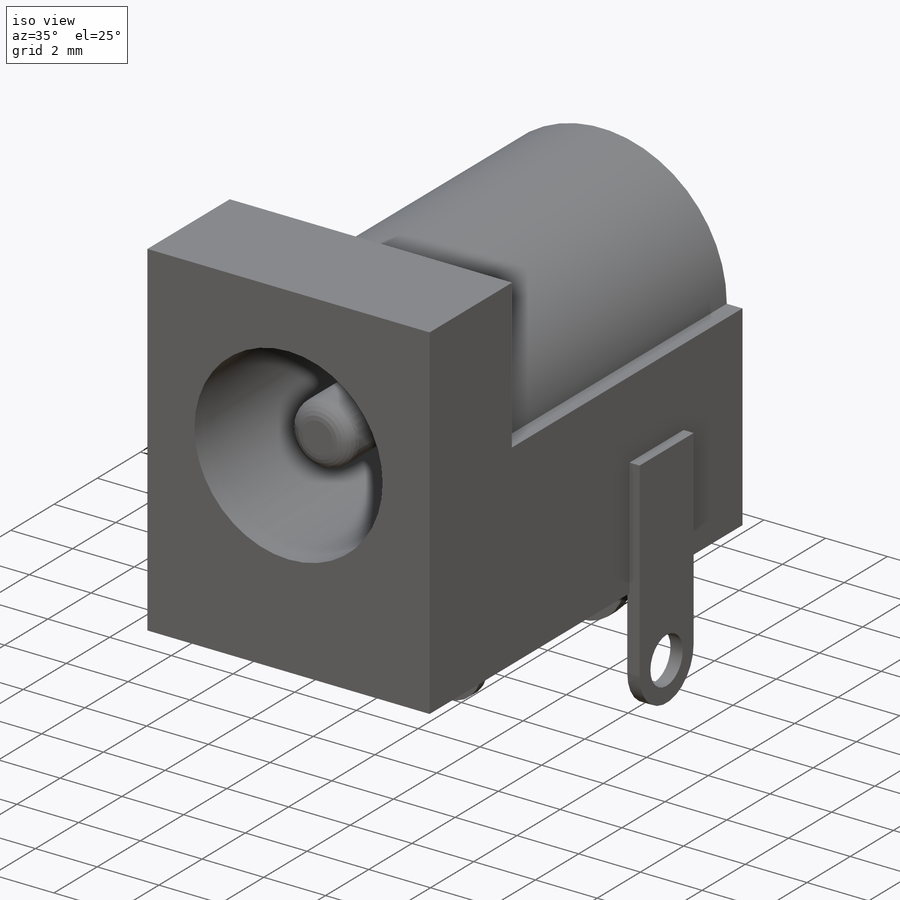
[diagram: iso view]
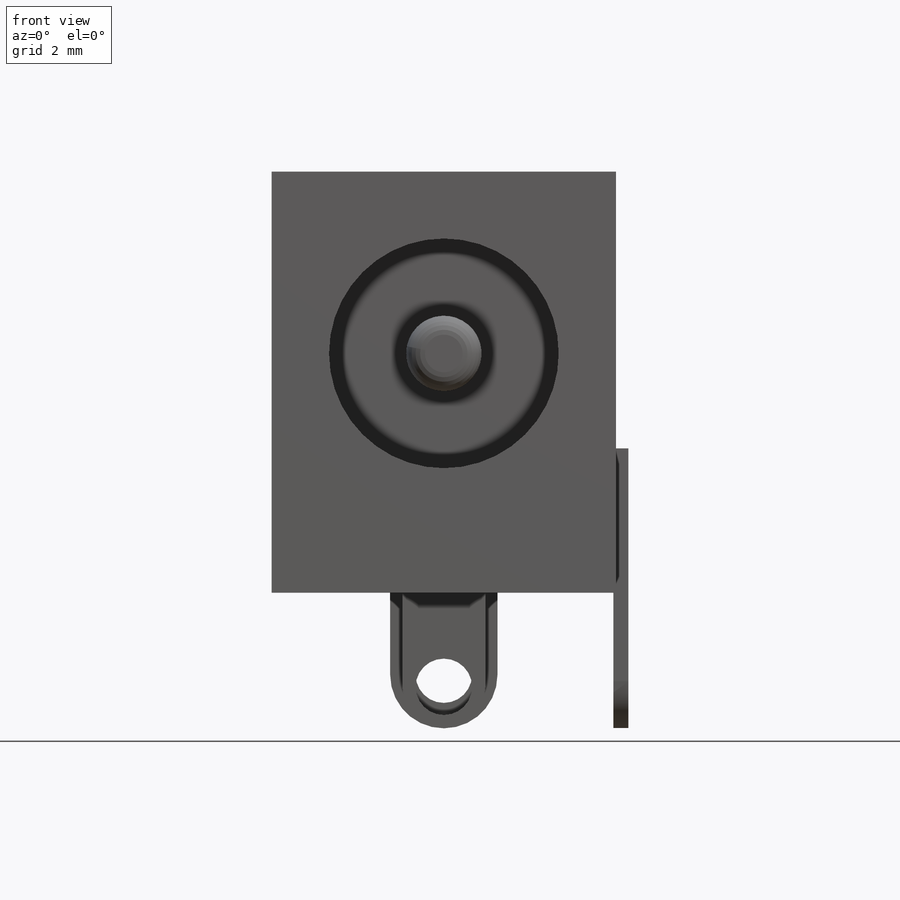
[diagram: front view]
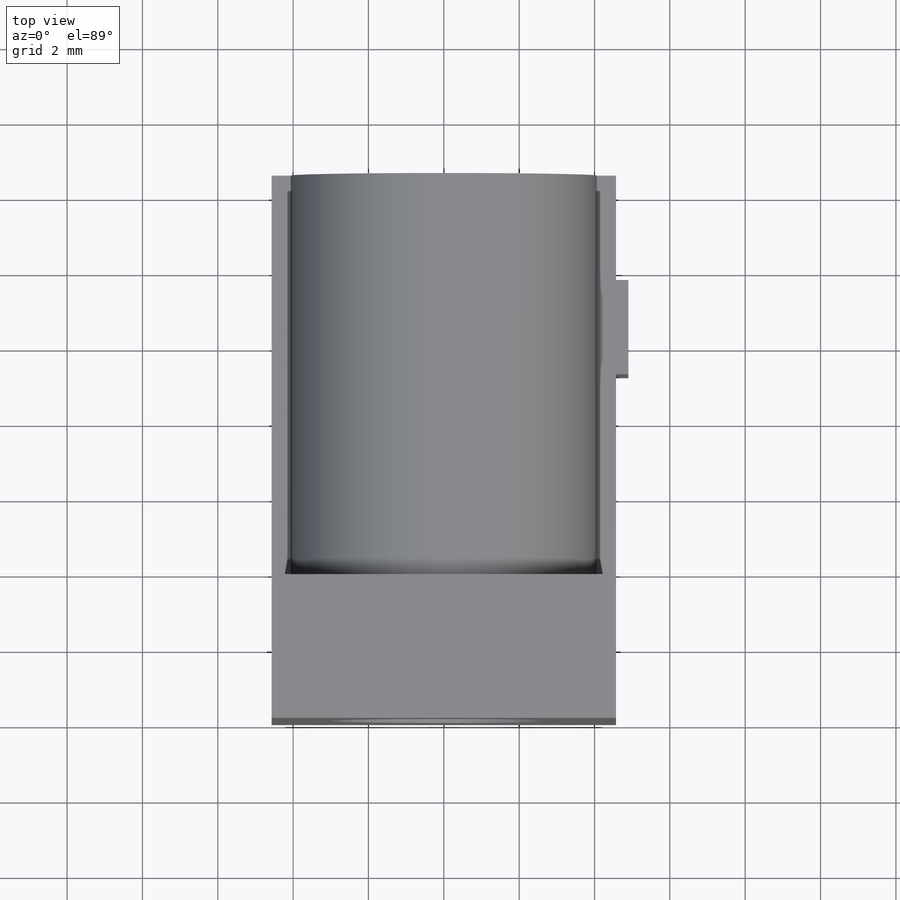
[diagram: top view]
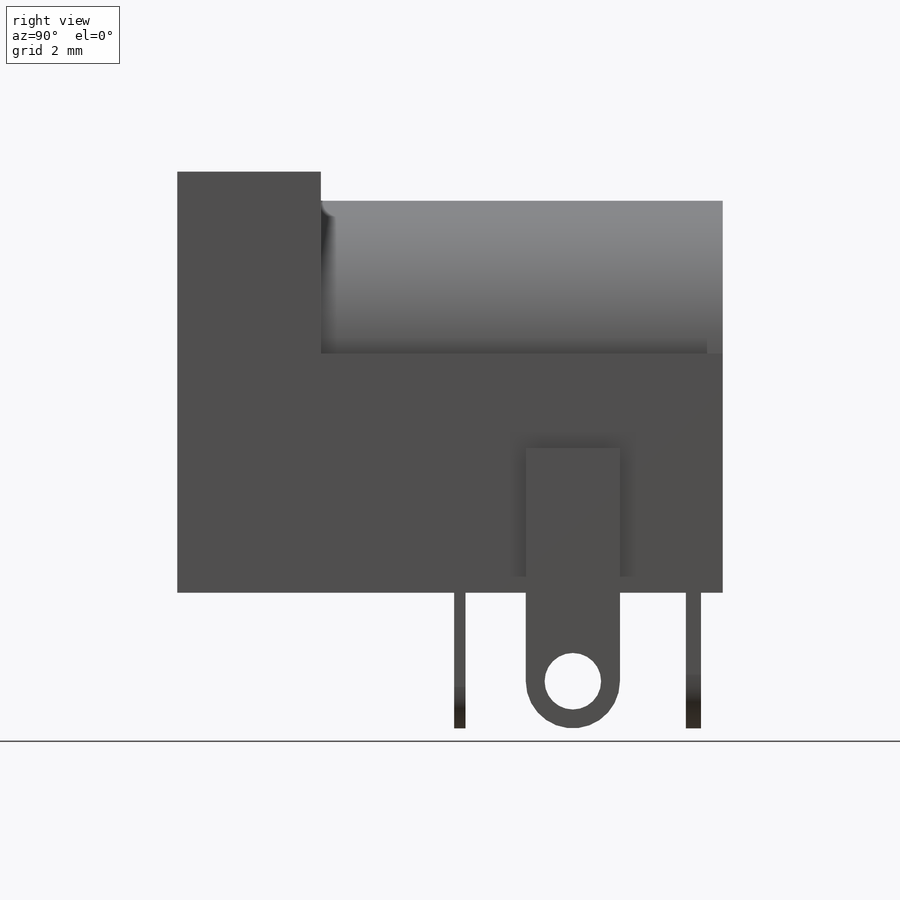
[diagram: right view]
SOLIDWORKS PART (.sldprt)
format: sldprt  version: not decoded by parser v0  size: 259,584 bytes
history: native  units: mm
features: sketch x7, plane x6, extrude x6, material x1, cut_extrude x1, fillet x1 (+8 scaffold rows collapsed)
feature tree (30):
  scaffold x8  (default folders/planes/origin — collapsed)
  material  "Material <not specified>"
  plane  "Plane1"
  plane  "Plane2"
  plane  "Plane3"
  sketch  "Sketch1"  dims[D1=9.144mm D2=11.176mm]
  extrude  "Base-Extrude"  Depth=3.81mm
  sketch  "Sketch2"  dims[c1.D1=4.064mm c1.D2=4.064mm c1.D3=4.064mm c2.D2=6.35mm]
  extrude  "Boss-Extrude1"  Depth=10.668mm
  sketch  "Sketch3"  dims[D1=6.096mm]
  cut_extrude  "Cut-Extrude1"  Depth=9.144mm
  sketch  "Sketch4"  dims[D1=2.0mm]
  extrude  "Extrude1"  Depth=1.34mm
  fillet  "Fillet1"  Radius=0.5mm
  plane  "Plane4"  Offset=4.7mm
  sketch  "Sketch5"  dims[c1.D2=1.25mm c1.D5=1.5mm c1.D1=2.5mm c2.D2=3.6mm c2.D3=10.5mm c2.D4=2.52mm]
  extrude  "Extrude2"  Depth=0.4mm
  plane  "Plane5"  Offset=7.5mm
  sketch  "Sketch6"  dims[c1.D2=1.1mm c1.D3=1.5mm c1.D1=2.2mm c2.D2=3.6mm c2.D4=9.144mm]
  extrude  "Extrude3"  Depth=0.3mm
  plane  "Plane6"  Offset=13.7mm
  sketch  "Sketch7"  dims[c1.D2=1.425mm c1.D3=1.5mm c1.D1=2.85mm c2.D2=3.6mm]
  extrude  "Extrude4"  Depth=0.4mm
decode coverage: 15 of 15 modeling features carry decoded parameters
note: suppression state not decoded; provenance and decode notes live in map.json
